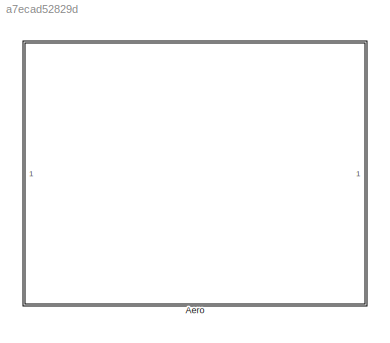
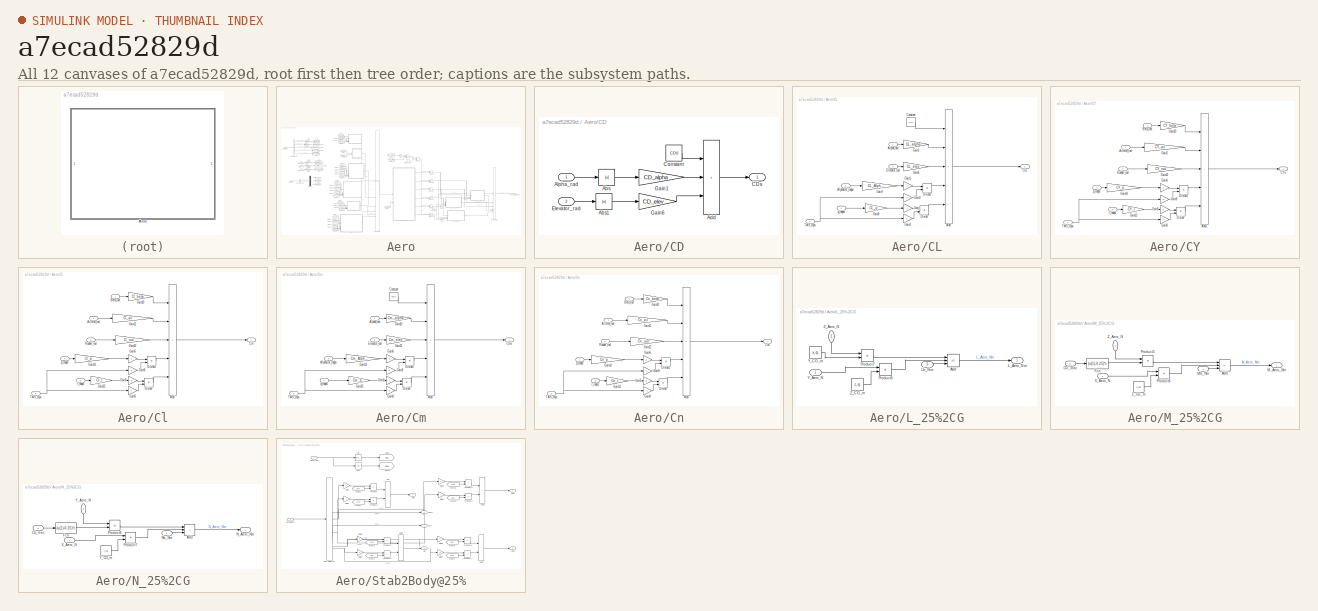
[diagram: thumbnail index - all 12 canvases of the model, root first then tree order]
MODEL slx_a7ecad52829d
KIND library
CONFIG AbsTol = auto
CONFIG EnableMultiTasking = off
CONFIG FixedStep = auto
CONFIG MaxStep = auto
CONFIG MinStep = auto
CONFIG RelTol = 1e-3
CONFIG SampleTimeConstraint = Unconstrained
CONFIG SolverName = VariableStepAuto
CONFIG StartTime = 0.0
CONFIG StopTime = 10.0
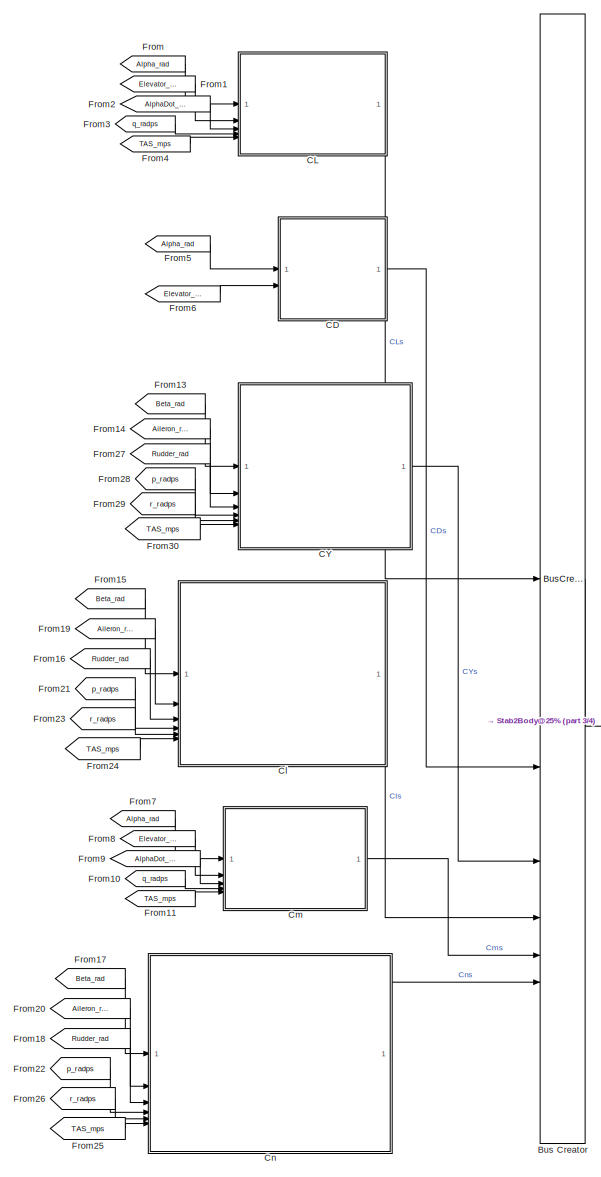
[diagram: Aero - part 1/4, left side, full height]
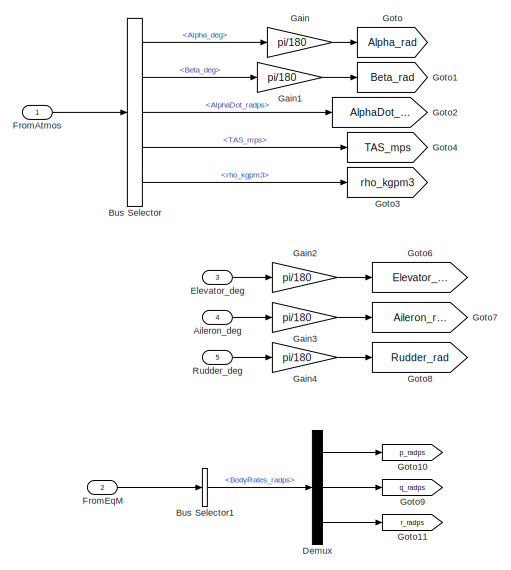
[diagram: Aero - part 2/4, top left region]
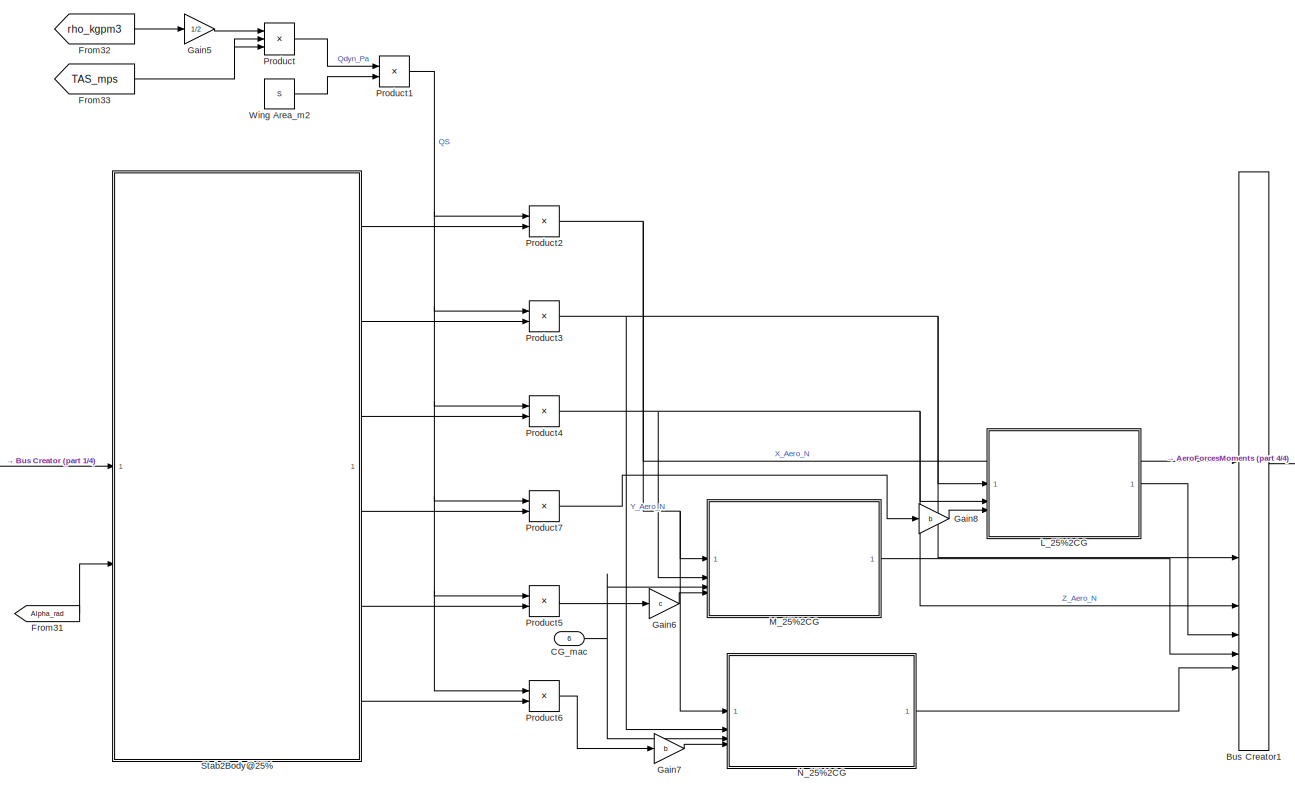
[diagram: Aero - part 3/4, central region]
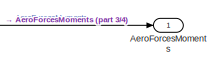
[diagram: Aero - part 4/4, middle right region]
BLOCK [SubSystem] Aero
BLOCK [Outport] Aero/AeroForcesMoments
BLOCK [Inport] Aero/Aileron_deg
  Port = 4
BLOCK [BusCreator] Aero/Bus Creator
  DisplayOption = bar
  InheritFromInputs = on
  Inputs = 6
BLOCK [BusCreator] Aero/Bus Creator1
  DisplayOption = bar
  InheritFromInputs = on
  Inputs = 6
BLOCK [BusSelector] Aero/Bus Selector
  OutputSignals = Alpha_deg,Beta_deg,AlphaDot_radps,TAS_mps,rho_kgpm3
BLOCK [BusSelector] Aero/Bus Selector1
  OutputSignals = BodyRates_radps
BLOCK [SubSystem] Aero/CD
BLOCK [Abs] Aero/CD/Abs
  SaturateOnIntegerOverflow = off
BLOCK [Abs] Aero/CD/Abs1
  SaturateOnIntegerOverflow = off
BLOCK [Sum] Aero/CD/Add
  IconShape = rectangular
  Inputs = +++
BLOCK [Inport] Aero/CD/Alpha_rad
BLOCK [Outport] Aero/CD/CDs
BLOCK [Constant] Aero/CD/Constant
  Value = CD0
BLOCK [Inport] Aero/CD/Elevator_rad
  Port = 2
BLOCK [Gain] Aero/CD/Gain1
  Gain = CD_alpha
BLOCK [Gain] Aero/CD/Gain6
  Gain = CD_elev
BLOCK [Inport] Aero/CG_mac
  Port = 6
BLOCK [SubSystem] Aero/CL
BLOCK [Sum] Aero/CL/Add
  IconShape = rectangular
  Inputs = +++++
BLOCK [Inport] Aero/CL/AlphaDot_radps
  Port = 3
BLOCK [Inport] Aero/CL/Alpha_rad
BLOCK [Outport] Aero/CL/CLs
BLOCK [Constant] Aero/CL/Constant
  Value = CL0
BLOCK [Product] Aero/CL/Divide
  Inputs = */
BLOCK [Product] Aero/CL/Divide1
  Inputs = */
BLOCK [Inport] Aero/CL/Elevator_rad
  Port = 2
BLOCK [Gain] Aero/CL/Gain
  Gain = c
BLOCK [Gain] Aero/CL/Gain1
  Gain = c
BLOCK [Gain] Aero/CL/Gain2
  Gain = 2
BLOCK [Gain] Aero/CL/Gain3
  Gain = 2
BLOCK [Gain] Aero/CL/Gain5
  Gain = CL_alpha
BLOCK [Gain] Aero/CL/Gain6
  Gain = CL_elev
BLOCK [Gain] Aero/CL/Gain7
  Gain = CL_AlphaDot
BLOCK [Gain] Aero/CL/Gain8
  Gain = CL_q
BLOCK [Inport] Aero/CL/TAS_mps
  Port = 5
BLOCK [Inport] Aero/CL/q_radps
  Port = 4
BLOCK [SubSystem] Aero/CY
BLOCK [Sum] Aero/CY/Add1
  IconShape = rectangular
  Inputs = +++++
BLOCK [Inport] Aero/CY/Aileron_rad
  Port = 2
BLOCK [Inport] Aero/CY/Beta_rad
BLOCK [Outport] Aero/CY/CYs
BLOCK [Product] Aero/CY/Divide
  Inputs = */
BLOCK [Product] Aero/CY/Divide1
  Inputs = */
BLOCK [Gain] Aero/CY/Gain10
  Gain = CY_beta
BLOCK [Gain] Aero/CY/Gain12
  Gain = CY_rud
BLOCK [Gain] Aero/CY/Gain13
  Gain = CY_r
BLOCK [Gain] Aero/CY/Gain14
  Gain = CY_p
BLOCK [Gain] Aero/CY/Gain2
  Gain = CY_ail
BLOCK [Gain] Aero/CY/Gain5
  Gain = b
BLOCK [Gain] Aero/CY/Gain6
  Gain = b
BLOCK [Gain] Aero/CY/Gain8
  Gain = 2
BLOCK [Gain] Aero/CY/Gain9
  Gain = 2
BLOCK [Inport] Aero/CY/Rudder_rad
  Port = 3
BLOCK [Inport] Aero/CY/TAS_mps
  Port = 6
BLOCK [Inport] Aero/CY/p_radps
  Port = 4
BLOCK [Inport] Aero/CY/r_radps
  Port = 5
BLOCK [SubSystem] Aero/Cl
BLOCK [Sum] Aero/Cl/Add
  IconShape = rectangular
  Inputs = +++++
BLOCK [Inport] Aero/Cl/Aileron_rad
  Port = 2
BLOCK [Inport] Aero/Cl/Beta_rad
BLOCK [Outport] Aero/Cl/Cls
BLOCK [Product] Aero/Cl/Divide
  Inputs = */
BLOCK [Product] Aero/Cl/Divide1
  Inputs = */
BLOCK [Gain] Aero/Cl/Gain10
  Gain = Cl_beta
BLOCK [Gain] Aero/Cl/Gain11
  Gain = Cl_ail
BLOCK [Gain] Aero/Cl/Gain12
  Gain = Cl_rud
BLOCK [Gain] Aero/Cl/Gain13
  Gain = Cl_r
BLOCK [Gain] Aero/Cl/Gain14
  Gain = Cl_p
BLOCK [Gain] Aero/Cl/Gain5
  Gain = b
BLOCK [Gain] Aero/Cl/Gain6
  Gain = b
BLOCK [Gain] Aero/Cl/Gain8
  Gain = 2
BLOCK [Gain] Aero/Cl/Gain9
  Gain = 2
BLOCK [Inport] Aero/Cl/Rudder_rad
  Port = 3
BLOCK [Inport] Aero/Cl/TAS_mps
  Port = 6
BLOCK [Inport] Aero/Cl/p_radps
  Port = 4
BLOCK [Inport] Aero/Cl/r_radps
  Port = 5
BLOCK [SubSystem] Aero/Cm
BLOCK [Sum] Aero/Cm/Add
  IconShape = rectangular
  Inputs = +++++
BLOCK [Inport] Aero/Cm/AlphaDot_radps
  Port = 3
BLOCK [Inport] Aero/Cm/Alpha_rad
BLOCK [Outport] Aero/Cm/Cms
BLOCK [Constant] Aero/Cm/Constant
  Value = Cm0
BLOCK [Product] Aero/Cm/Divide
  Inputs = */
BLOCK [Product] Aero/Cm/Divide1
  Inputs = */
BLOCK [Inport] Aero/Cm/Elevator_rad
  Port = 2
BLOCK [Gain] Aero/Cm/Gain10
  Gain = Cm_alpha
BLOCK [Gain] Aero/Cm/Gain11
  Gain = Cm_elev
BLOCK [Gain] Aero/Cm/Gain12
  Gain = Cm_AlphaDot
BLOCK [Gain] Aero/Cm/Gain13
  Gain = Cm_q
BLOCK [Gain] Aero/Cm/Gain5
  Gain = c
BLOCK [Gain] Aero/Cm/Gain6
  Gain = c
BLOCK [Gain] Aero/Cm/Gain8
  Gain = 2
BLOCK [Gain] Aero/Cm/Gain9
  Gain = 2
BLOCK [Inport] Aero/Cm/TAS_mps
  Port = 5
BLOCK [Inport] Aero/Cm/q_radps
  Port = 4
BLOCK [SubSystem] Aero/Cn
BLOCK [Sum] Aero/Cn/Add
  IconShape = rectangular
  Inputs = +++++
BLOCK [Inport] Aero/Cn/Aileron_rad
  Port = 2
BLOCK [Inport] Aero/Cn/Beta_rad
BLOCK [Outport] Aero/Cn/Cns
BLOCK [Product] Aero/Cn/Divide
  Inputs = */
BLOCK [Product] Aero/Cn/Divide1
  Inputs = */
BLOCK [Gain] Aero/Cn/Gain10
  Gain = Cn_beta
BLOCK [Gain] Aero/Cn/Gain11
  Gain = Cn_ail
BLOCK [Gain] Aero/Cn/Gain12
  Gain = Cn_rud
BLOCK [Gain] Aero/Cn/Gain13
  Gain = Cn_r
BLOCK [Gain] Aero/Cn/Gain14
  Gain = Cn_p
BLOCK [Gain] Aero/Cn/Gain5
  Gain = b
BLOCK [Gain] Aero/Cn/Gain6
  Gain = b
BLOCK [Gain] Aero/Cn/Gain8
  Gain = 2
BLOCK [Gain] Aero/Cn/Gain9
  Gain = 2
BLOCK [Inport] Aero/Cn/Rudder_rad
  Port = 3
BLOCK [Inport] Aero/Cn/TAS_mps
  Port = 6
BLOCK [Inport] Aero/Cn/p_radps
  Port = 4
BLOCK [Inport] Aero/Cn/r_radps
  Port = 5
BLOCK [Demux] Aero/Demux
  Outputs = 3
BLOCK [Inport] Aero/Elevator_deg
  Port = 3
BLOCK [From] Aero/From
  GotoTag = Alpha_rad
BLOCK [From] Aero/From1
  GotoTag = Elevator_rad
BLOCK [From] Aero/From10
  GotoTag = q_radps
BLOCK [From] Aero/From11
  GotoTag = TAS_mps
BLOCK [From] Aero/From13
  GotoTag = Beta_rad
BLOCK [From] Aero/From14
  GotoTag = Aileron_rad
BLOCK [From] Aero/From15
  GotoTag = Beta_rad
BLOCK [From] Aero/From16
  GotoTag = Rudder_rad
BLOCK [From] Aero/From17
  GotoTag = Beta_rad
BLOCK [From] Aero/From18
  GotoTag = Rudder_rad
BLOCK [From] Aero/From19
  GotoTag = Aileron_rad
BLOCK [From] Aero/From2
  GotoTag = AlphaDot_radps
BLOCK [From] Aero/From20
  GotoTag = Aileron_rad
BLOCK [From] Aero/From21
  GotoTag = p_radps
BLOCK [From] Aero/From22
  GotoTag = p_radps
BLOCK [From] Aero/From23
  GotoTag = r_radps
BLOCK [From] Aero/From24
  GotoTag = TAS_mps
BLOCK [From] Aero/From25
  GotoTag = TAS_mps
BLOCK [From] Aero/From26
  GotoTag = r_radps
BLOCK [From] Aero/From27
  GotoTag = Rudder_rad
BLOCK [From] Aero/From28
  GotoTag = p_radps
BLOCK [From] Aero/From29
  GotoTag = r_radps
BLOCK [From] Aero/From3
  GotoTag = q_radps
BLOCK [From] Aero/From30
  GotoTag = TAS_mps
BLOCK [From] Aero/From31
  GotoTag = Alpha_rad
BLOCK [From] Aero/From32
  GotoTag = rho_kgpm3
BLOCK [From] Aero/From33
  GotoTag = TAS_mps
BLOCK [From] Aero/From4
  GotoTag = TAS_mps
BLOCK [From] Aero/From5
  GotoTag = Alpha_rad
BLOCK [From] Aero/From6
  GotoTag = Elevator_rad
BLOCK [From] Aero/From7
  GotoTag = Alpha_rad
BLOCK [From] Aero/From8
  GotoTag = Elevator_rad
BLOCK [From] Aero/From9
  GotoTag = AlphaDot_radps
BLOCK [Inport] Aero/FromAtmos
BLOCK [Inport] Aero/FromEqM
  Port = 2
BLOCK [Gain] Aero/Gain
  Gain = pi/180
BLOCK [Gain] Aero/Gain1
  Gain = pi/180
BLOCK [Gain] Aero/Gain2
  Gain = pi/180
BLOCK [Gain] Aero/Gain3
  Gain = pi/180
BLOCK [Gain] Aero/Gain4
  Gain = pi/180
BLOCK [Gain] Aero/Gain5
  Gain = 1/2
BLOCK [Gain] Aero/Gain6
  Gain = c
BLOCK [Gain] Aero/Gain7
  Gain = b
BLOCK [Gain] Aero/Gain8
  Gain = b
BLOCK [Goto] Aero/Goto
  GotoTag = Alpha_rad
BLOCK [Goto] Aero/Goto1
  GotoTag = Beta_rad
BLOCK [Goto] Aero/Goto10
  GotoTag = p_radps
BLOCK [Goto] Aero/Goto11
  GotoTag = r_radps
BLOCK [Goto] Aero/Goto2
  GotoTag = AlphaDot_radps
BLOCK [Goto] Aero/Goto3
  GotoTag = rho_kgpm3
BLOCK [Goto] Aero/Goto4
  GotoTag = TAS_mps
BLOCK [Goto] Aero/Goto6
  GotoTag = Elevator_rad
BLOCK [Goto] Aero/Goto7
  GotoTag = Aileron_rad
BLOCK [Goto] Aero/Goto8
  GotoTag = Rudder_rad
BLOCK [Goto] Aero/Goto9
  GotoTag = q_radps
BLOCK [SubSystem] Aero/L_25%2CG
BLOCK [Sum] Aero/L_25%2CG/Add
  IconShape = rectangular
  Inputs = --+
BLOCK [Outport] Aero/L_25%2CG/L_Aero_Nm
BLOCK [Inport] Aero/L_25%2CG/Lb_Nm
  Port = 3
BLOCK [Product] Aero/L_25%2CG/Product7
BLOCK [Product] Aero/L_25%2CG/Product8
BLOCK [Inport] Aero/L_25%2CG/Y_Aero_N
BLOCK [Constant] Aero/L_25%2CG/Y_CG_m
  Value = y_cg
BLOCK [Inport] Aero/L_25%2CG/Z_Aero_N
  NameLocation = left
  Port = 2
BLOCK [Constant] Aero/L_25%2CG/Z_CG_m
  Value = z_cg
BLOCK [SubSystem] Aero/M_25%2CG
BLOCK [Sum] Aero/M_25%2CG/Add
  IconShape = rectangular
  Inputs = -++
BLOCK [Inport] Aero/M_25%2CG/CG_mac
  Port = 3
BLOCK [Fcn] Aero/M_25%2CG/Fcn
  Expr = (u(1)-0.25)*c
BLOCK [Outport] Aero/M_25%2CG/M_Aero_Nm
BLOCK [Inport] Aero/M_25%2CG/Mb_Nm
  Port = 4
BLOCK [Product] Aero/M_25%2CG/Product5
BLOCK [Product] Aero/M_25%2CG/Product6
BLOCK [Inport] Aero/M_25%2CG/X_Aero_N
BLOCK [Inport] Aero/M_25%2CG/Z_Aero_N
  NameLocation = left
  Port = 2
BLOCK [Constant] Aero/M_25%2CG/Z_CG_m
  Value = z_cg
BLOCK [SubSystem] Aero/N_25%2CG
BLOCK [Sum] Aero/N_25%2CG/Add
  IconShape = rectangular
  Inputs = +++
BLOCK [Inport] Aero/N_25%2CG/CG_mac
  Port = 3
BLOCK [Fcn] Aero/N_25%2CG/Fcn
  Expr = (u(1)-0.25)*c
BLOCK [Outport] Aero/N_25%2CG/N_Aero_Nm
BLOCK [Inport] Aero/N_25%2CG/Nb_Nm
  Port = 4
BLOCK [Product] Aero/N_25%2CG/Product6
BLOCK [Product] Aero/N_25%2CG/Product7
BLOCK [Inport] Aero/N_25%2CG/X_Aero_N
BLOCK [Inport] Aero/N_25%2CG/Y_Aero_N
  NameLocation = left
  Port = 2
BLOCK [Constant] Aero/N_25%2CG/Y_CG_m
  Value = y_cg
BLOCK [Product] Aero/Product
  Inputs = 3
BLOCK [Product] Aero/Product1
BLOCK [Product] Aero/Product2
BLOCK [Product] Aero/Product3
BLOCK [Product] Aero/Product4
BLOCK [Product] Aero/Product5
BLOCK [Product] Aero/Product6
BLOCK [Product] Aero/Product7
BLOCK [Inport] Aero/Rudder_deg
  Port = 5
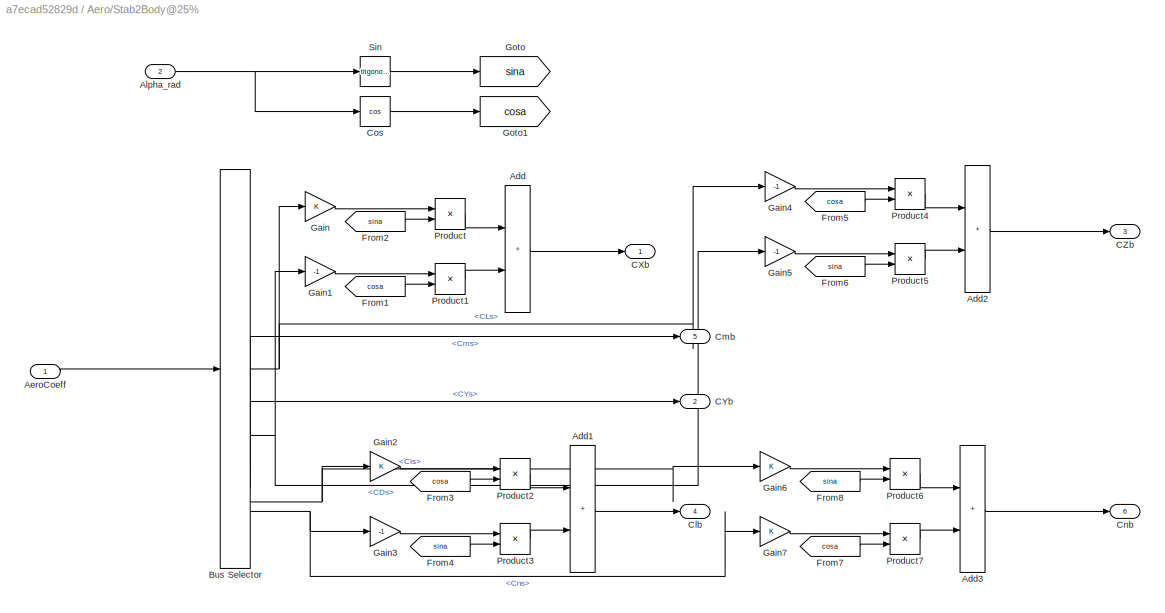
BLOCK [SubSystem] Aero/Stab2Body@25%
BLOCK [Sum] Aero/Stab2Body@25%/Add
  IconShape = rectangular
BLOCK [Sum] Aero/Stab2Body@25%/Add1
  IconShape = rectangular
BLOCK [Sum] Aero/Stab2Body@25%/Add2
  IconShape = rectangular
BLOCK [Sum] Aero/Stab2Body@25%/Add3
  IconShape = rectangular
BLOCK [Inport] Aero/Stab2Body@25%/AeroCoeff
BLOCK [Inport] Aero/Stab2Body@25%/Alpha_rad
  Port = 2
BLOCK [BusSelector] Aero/Stab2Body@25%/Bus Selector
  OutputSignals = CLs,CDs,Cms,CYs,Cls,Cns
BLOCK [Outport] Aero/Stab2Body@25%/CXb
BLOCK [Outport] Aero/Stab2Body@25%/CYb
  Port = 2
BLOCK [Outport] Aero/Stab2Body@25%/CZb
  Port = 3
BLOCK [Outport] Aero/Stab2Body@25%/Clb
  Port = 4
BLOCK [Outport] Aero/Stab2Body@25%/Cmb
  Port = 5
BLOCK [Outport] Aero/Stab2Body@25%/Cnb
  Port = 6
BLOCK [Trigonometry] Aero/Stab2Body@25%/Cos
  Operator = cos
BLOCK [From] Aero/Stab2Body@25%/From1
  GotoTag = cosa
BLOCK [From] Aero/Stab2Body@25%/From2
  GotoTag = sina
BLOCK [From] Aero/Stab2Body@25%/From3
  GotoTag = cosa
BLOCK [From] Aero/Stab2Body@25%/From4
  GotoTag = sina
BLOCK [From] Aero/Stab2Body@25%/From5
  GotoTag = cosa
BLOCK [From] Aero/Stab2Body@25%/From6
  GotoTag = sina
BLOCK [From] Aero/Stab2Body@25%/From7
  GotoTag = cosa
BLOCK [From] Aero/Stab2Body@25%/From8
  GotoTag = sina
BLOCK [Gain] Aero/Stab2Body@25%/Gain
BLOCK [Gain] Aero/Stab2Body@25%/Gain1
  Gain = -1
BLOCK [Gain] Aero/Stab2Body@25%/Gain2
BLOCK [Gain] Aero/Stab2Body@25%/Gain3
  Gain = -1
BLOCK [Gain] Aero/Stab2Body@25%/Gain4
  Gain = -1
BLOCK [Gain] Aero/Stab2Body@25%/Gain5
  Gain = -1
BLOCK [Gain] Aero/Stab2Body@25%/Gain6
BLOCK [Gain] Aero/Stab2Body@25%/Gain7
BLOCK [Goto] Aero/Stab2Body@25%/Goto
  GotoTag = sina
BLOCK [Goto] Aero/Stab2Body@25%/Goto1
  GotoTag = cosa
BLOCK [Product] Aero/Stab2Body@25%/Product
BLOCK [Product] Aero/Stab2Body@25%/Product1
BLOCK [Product] Aero/Stab2Body@25%/Product2
BLOCK [Product] Aero/Stab2Body@25%/Product3
BLOCK [Product] Aero/Stab2Body@25%/Product4
BLOCK [Product] Aero/Stab2Body@25%/Product5
BLOCK [Product] Aero/Stab2Body@25%/Product6
BLOCK [Product] Aero/Stab2Body@25%/Product7
BLOCK [Trigonometry] Aero/Stab2Body@25%/Sin
BLOCK [Constant] Aero/Wing Area_m2
  Value = S
LINE Aero/Aileron_deg:1 -> Aero/Gain3:1
LINE Aero/Bus Creator1:1 -> Aero/AeroForcesMoments:1
LINE Aero/Bus Creator:1 -> Aero/Stab2Body@25%:1
LINE Aero/Bus Selector1:1 -> Aero/Demux:1
LINE Aero/Bus Selector:1 -> Aero/Gain:1
LINE Aero/Bus Selector:2 -> Aero/Gain1:1
LINE Aero/Bus Selector:3 -> Aero/Goto2:1
LINE Aero/Bus Selector:4 -> Aero/Goto4:1
LINE Aero/Bus Selector:5 -> Aero/Goto3:1
LINE Aero/CD/Abs1:1 -> Aero/CD/Gain6:1
LINE Aero/CD/Abs:1 -> Aero/CD/Gain1:1
LINE Aero/CD/Add:1 -> Aero/CD/CDs:1
LINE Aero/CD/Alpha_rad:1 -> Aero/CD/Abs:1
LINE Aero/CD/Constant:1 -> Aero/CD/Add:1
LINE Aero/CD/Elevator_rad:1 -> Aero/CD/Abs1:1
LINE Aero/CD/Gain1:1 -> Aero/CD/Add:2
LINE Aero/CD/Gain6:1 -> Aero/CD/Add:3
LINE Aero/CD:1 -> Aero/Bus Creator:2
NET Aero/CG_mac:1 -> Aero/M_25%2CG:3, Aero/N_25%2CG:3
LINE Aero/CL/Add:1 -> Aero/CL/CLs:1
LINE Aero/CL/AlphaDot_radps:1 -> Aero/CL/Gain7:1
LINE Aero/CL/Alpha_rad:1 -> Aero/CL/Gain5:1
LINE Aero/CL/Constant:1 -> Aero/CL/Add:1
LINE Aero/CL/Divide1:1 -> Aero/CL/Add:4
LINE Aero/CL/Divide:1 -> Aero/CL/Add:5
LINE Aero/CL/Elevator_rad:1 -> Aero/CL/Gain6:1
LINE Aero/CL/Gain1:1 -> Aero/CL/Divide1:1
LINE Aero/CL/Gain2:1 -> Aero/CL/Divide:2
LINE Aero/CL/Gain3:1 -> Aero/CL/Divide1:2
LINE Aero/CL/Gain5:1 -> Aero/CL/Add:2
LINE Aero/CL/Gain6:1 -> Aero/CL/Add:3
LINE Aero/CL/Gain7:1 -> Aero/CL/Gain1:1
LINE Aero/CL/Gain8:1 -> Aero/CL/Gain:1
LINE Aero/CL/Gain:1 -> Aero/CL/Divide:1
NET Aero/CL/TAS_mps:1 -> Aero/CL/Gain2:1, Aero/CL/Gain3:1
LINE Aero/CL/q_radps:1 -> Aero/CL/Gain8:1
LINE Aero/CL:1 -> Aero/Bus Creator:1
LINE Aero/CY/Add1:1 -> Aero/CY/CYs:1
LINE Aero/CY/Aileron_rad:1 -> Aero/CY/Gain2:1
LINE Aero/CY/Beta_rad:1 -> Aero/CY/Gain10:1
LINE Aero/CY/Divide1:1 -> Aero/CY/Add1:4
LINE Aero/CY/Divide:1 -> Aero/CY/Add1:5
LINE Aero/CY/Gain10:1 -> Aero/CY/Add1:1
LINE Aero/CY/Gain12:1 -> Aero/CY/Add1:3
LINE Aero/CY/Gain13:1 -> Aero/CY/Gain5:1
LINE Aero/CY/Gain14:1 -> Aero/CY/Gain6:1
LINE Aero/CY/Gain2:1 -> Aero/CY/Add1:2
LINE Aero/CY/Gain5:1 -> Aero/CY/Divide:1
LINE Aero/CY/Gain6:1 -> Aero/CY/Divide1:1
LINE Aero/CY/Gain8:1 -> Aero/CY/Divide:2
LINE Aero/CY/Gain9:1 -> Aero/CY/Divide1:2
LINE Aero/CY/Rudder_rad:1 -> Aero/CY/Gain12:1
NET Aero/CY/TAS_mps:1 -> Aero/CY/Gain8:1, Aero/CY/Gain9:1
LINE Aero/CY/p_radps:1 -> Aero/CY/Gain14:1
LINE Aero/CY/r_radps:1 -> Aero/CY/Gain13:1
LINE Aero/CY:1 -> Aero/Bus Creator:3
LINE Aero/Cl/Add:1 -> Aero/Cl/Cls:1
LINE Aero/Cl/Aileron_rad:1 -> Aero/Cl/Gain11:1
LINE Aero/Cl/Beta_rad:1 -> Aero/Cl/Gain10:1
LINE Aero/Cl/Divide1:1 -> Aero/Cl/Add:4
LINE Aero/Cl/Divide:1 -> Aero/Cl/Add:5
LINE Aero/Cl/Gain10:1 -> Aero/Cl/Add:1
LINE Aero/Cl/Gain11:1 -> Aero/Cl/Add:2
LINE Aero/Cl/Gain12:1 -> Aero/Cl/Add:3
LINE Aero/Cl/Gain13:1 -> Aero/Cl/Gain5:1
LINE Aero/Cl/Gain14:1 -> Aero/Cl/Gain6:1
LINE Aero/Cl/Gain5:1 -> Aero/Cl/Divide:1
LINE Aero/Cl/Gain6:1 -> Aero/Cl/Divide1:1
LINE Aero/Cl/Gain8:1 -> Aero/Cl/Divide:2
LINE Aero/Cl/Gain9:1 -> Aero/Cl/Divide1:2
LINE Aero/Cl/Rudder_rad:1 -> Aero/Cl/Gain12:1
NET Aero/Cl/TAS_mps:1 -> Aero/Cl/Gain8:1, Aero/Cl/Gain9:1
LINE Aero/Cl/p_radps:1 -> Aero/Cl/Gain14:1
LINE Aero/Cl/r_radps:1 -> Aero/Cl/Gain13:1
LINE Aero/Cl:1 -> Aero/Bus Creator:4
LINE Aero/Cm/Add:1 -> Aero/Cm/Cms:1
LINE Aero/Cm/AlphaDot_radps:1 -> Aero/Cm/Gain12:1
LINE Aero/Cm/Alpha_rad:1 -> Aero/Cm/Gain10:1
LINE Aero/Cm/Constant:1 -> Aero/Cm/Add:1
LINE Aero/Cm/Divide1:1 -> Aero/Cm/Add:4
LINE Aero/Cm/Divide:1 -> Aero/Cm/Add:5
LINE Aero/Cm/Elevator_rad:1 -> Aero/Cm/Gain11:1
LINE Aero/Cm/Gain10:1 -> Aero/Cm/Add:2
LINE Aero/Cm/Gain11:1 -> Aero/Cm/Add:3
LINE Aero/Cm/Gain12:1 -> Aero/Cm/Gain6:1
LINE Aero/Cm/Gain13:1 -> Aero/Cm/Gain5:1
LINE Aero/Cm/Gain5:1 -> Aero/Cm/Divide:1
LINE Aero/Cm/Gain6:1 -> Aero/Cm/Divide1:1
LINE Aero/Cm/Gain8:1 -> Aero/Cm/Divide:2
LINE Aero/Cm/Gain9:1 -> Aero/Cm/Divide1:2
NET Aero/Cm/TAS_mps:1 -> Aero/Cm/Gain8:1, Aero/Cm/Gain9:1
LINE Aero/Cm/q_radps:1 -> Aero/Cm/Gain13:1
LINE Aero/Cm:1 -> Aero/Bus Creator:5
LINE Aero/Cn/Add:1 -> Aero/Cn/Cns:1
LINE Aero/Cn/Aileron_rad:1 -> Aero/Cn/Gain11:1
LINE Aero/Cn/Beta_rad:1 -> Aero/Cn/Gain10:1
LINE Aero/Cn/Divide1:1 -> Aero/Cn/Add:4
LINE Aero/Cn/Divide:1 -> Aero/Cn/Add:5
LINE Aero/Cn/Gain10:1 -> Aero/Cn/Add:1
LINE Aero/Cn/Gain11:1 -> Aero/Cn/Add:2
LINE Aero/Cn/Gain12:1 -> Aero/Cn/Add:3
LINE Aero/Cn/Gain13:1 -> Aero/Cn/Gain5:1
LINE Aero/Cn/Gain14:1 -> Aero/Cn/Gain6:1
LINE Aero/Cn/Gain5:1 -> Aero/Cn/Divide:1
LINE Aero/Cn/Gain6:1 -> Aero/Cn/Divide1:1
LINE Aero/Cn/Gain8:1 -> Aero/Cn/Divide:2
LINE Aero/Cn/Gain9:1 -> Aero/Cn/Divide1:2
LINE Aero/Cn/Rudder_rad:1 -> Aero/Cn/Gain12:1
NET Aero/Cn/TAS_mps:1 -> Aero/Cn/Gain8:1, Aero/Cn/Gain9:1
LINE Aero/Cn/p_radps:1 -> Aero/Cn/Gain14:1
LINE Aero/Cn/r_radps:1 -> Aero/Cn/Gain13:1
LINE Aero/Cn:1 -> Aero/Bus Creator:6
LINE Aero/Demux:1 -> Aero/Goto10:1
LINE Aero/Demux:2 -> Aero/Goto9:1
LINE Aero/Demux:3 -> Aero/Goto11:1
LINE Aero/Elevator_deg:1 -> Aero/Gain2:1
LINE Aero/From10:1 -> Aero/Cm:4
LINE Aero/From11:1 -> Aero/Cm:5
LINE Aero/From13:1 -> Aero/CY:1
LINE Aero/From14:1 -> Aero/CY:2
LINE Aero/From15:1 -> Aero/Cl:1
LINE Aero/From16:1 -> Aero/Cl:3
LINE Aero/From17:1 -> Aero/Cn:1
LINE Aero/From18:1 -> Aero/Cn:3
LINE Aero/From19:1 -> Aero/Cl:2
LINE Aero/From1:1 -> Aero/CL:2
LINE Aero/From20:1 -> Aero/Cn:2
LINE Aero/From21:1 -> Aero/Cl:4
LINE Aero/From22:1 -> Aero/Cn:4
LINE Aero/From23:1 -> Aero/Cl:5
LINE Aero/From24:1 -> Aero/Cl:6
LINE Aero/From25:1 -> Aero/Cn:6
LINE Aero/From26:1 -> Aero/Cn:5
LINE Aero/From27:1 -> Aero/CY:3
LINE Aero/From28:1 -> Aero/CY:4
LINE Aero/From29:1 -> Aero/CY:5
LINE Aero/From2:1 -> Aero/CL:3
LINE Aero/From30:1 -> Aero/CY:6
LINE Aero/From31:1 -> Aero/Stab2Body@25%:2
LINE Aero/From32:1 -> Aero/Gain5:1
NET Aero/From33:1 -> Aero/Product:2, Aero/Product:3
LINE Aero/From3:1 -> Aero/CL:4
LINE Aero/From4:1 -> Aero/CL:5
LINE Aero/From5:1 -> Aero/CD:1
LINE Aero/From6:1 -> Aero/CD:2
LINE Aero/From7:1 -> Aero/Cm:1
LINE Aero/From8:1 -> Aero/Cm:2
LINE Aero/From9:1 -> Aero/Cm:3
LINE Aero/From:1 -> Aero/CL:1
LINE Aero/FromAtmos:1 -> Aero/Bus Selector:1
LINE Aero/FromEqM:1 -> Aero/Bus Selector1:1
LINE Aero/Gain1:1 -> Aero/Goto1:1
LINE Aero/Gain2:1 -> Aero/Goto6:1
LINE Aero/Gain3:1 -> Aero/Goto7:1
LINE Aero/Gain4:1 -> Aero/Goto8:1
LINE Aero/Gain5:1 -> Aero/Product:1
LINE Aero/Gain6:1 -> Aero/M_25%2CG:4
LINE Aero/Gain7:1 -> Aero/N_25%2CG:4
LINE Aero/Gain8:1 -> Aero/L_25%2CG:3
LINE Aero/Gain:1 -> Aero/Goto:1
LINE Aero/L_25%2CG/Add:1 -> Aero/L_25%2CG/L_Aero_Nm:1
LINE Aero/L_25%2CG/Lb_Nm:1 -> Aero/L_25%2CG/Add:3
LINE Aero/L_25%2CG/Product7:1 -> Aero/L_25%2CG/Add:1
LINE Aero/L_25%2CG/Product8:1 -> Aero/L_25%2CG/Add:2
LINE Aero/L_25%2CG/Y_Aero_N:1 -> Aero/L_25%2CG/Product8:1
LINE Aero/L_25%2CG/Y_CG_m:1 -> Aero/L_25%2CG/Product7:2
LINE Aero/L_25%2CG/Z_Aero_N:1 -> Aero/L_25%2CG/Product7:1
LINE Aero/L_25%2CG/Z_CG_m:1 -> Aero/L_25%2CG/Product8:2
LINE Aero/L_25%2CG:1 -> Aero/Bus Creator1:4
LINE Aero/M_25%2CG/Add:1 -> Aero/M_25%2CG/M_Aero_Nm:1
LINE Aero/M_25%2CG/CG_mac:1 -> Aero/M_25%2CG/Fcn:1
LINE Aero/M_25%2CG/Fcn:1 -> Aero/M_25%2CG/Product5:2
LINE Aero/M_25%2CG/Mb_Nm:1 -> Aero/M_25%2CG/Add:3
LINE Aero/M_25%2CG/Product5:1 -> Aero/M_25%2CG/Add:1
LINE Aero/M_25%2CG/Product6:1 -> Aero/M_25%2CG/Add:2
LINE Aero/M_25%2CG/X_Aero_N:1 -> Aero/M_25%2CG/Product6:1
LINE Aero/M_25%2CG/Z_Aero_N:1 -> Aero/M_25%2CG/Product5:1
LINE Aero/M_25%2CG/Z_CG_m:1 -> Aero/M_25%2CG/Product6:2
LINE Aero/M_25%2CG:1 -> Aero/Bus Creator1:5
LINE Aero/N_25%2CG/Add:1 -> Aero/N_25%2CG/N_Aero_Nm:1
LINE Aero/N_25%2CG/CG_mac:1 -> Aero/N_25%2CG/Fcn:1
LINE Aero/N_25%2CG/Fcn:1 -> Aero/N_25%2CG/Product6:2
LINE Aero/N_25%2CG/Nb_Nm:1 -> Aero/N_25%2CG/Add:3
LINE Aero/N_25%2CG/Product6:1 -> Aero/N_25%2CG/Add:1
LINE Aero/N_25%2CG/Product7:1 -> Aero/N_25%2CG/Add:2
LINE Aero/N_25%2CG/X_Aero_N:1 -> Aero/N_25%2CG/Product7:1
LINE Aero/N_25%2CG/Y_Aero_N:1 -> Aero/N_25%2CG/Product6:1
LINE Aero/N_25%2CG/Y_CG_m:1 -> Aero/N_25%2CG/Product7:2
LINE Aero/N_25%2CG:1 -> Aero/Bus Creator1:6
NET Aero/Product1:1 -> Aero/Product2:1, Aero/Product3:1, Aero/Product4:1, Aero/Product5:1, Aero/Product6:1, Aero/Product7:1
NET Aero/Product2:1 -> Aero/Bus Creator1:1, Aero/M_25%2CG:1, Aero/N_25%2CG:1
NET Aero/Product3:1 -> Aero/Bus Creator1:2, Aero/L_25%2CG:1, Aero/N_25%2CG:2
NET Aero/Product4:1 -> Aero/Bus Creator1:3, Aero/L_25%2CG:2, Aero/M_25%2CG:2
LINE Aero/Product5:1 -> Aero/Gain6:1
LINE Aero/Product6:1 -> Aero/Gain7:1
LINE Aero/Product7:1 -> Aero/Gain8:1
LINE Aero/Product:1 -> Aero/Product1:1
LINE Aero/Rudder_deg:1 -> Aero/Gain4:1
LINE Aero/Stab2Body@25%/Add1:1 -> Aero/Stab2Body@25%/Clb:1
LINE Aero/Stab2Body@25%/Add2:1 -> Aero/Stab2Body@25%/CZb:1
LINE Aero/Stab2Body@25%/Add3:1 -> Aero/Stab2Body@25%/Cnb:1
LINE Aero/Stab2Body@25%/Add:1 -> Aero/Stab2Body@25%/CXb:1
LINE Aero/Stab2Body@25%/AeroCoeff:1 -> Aero/Stab2Body@25%/Bus Selector:1
NET Aero/Stab2Body@25%/Alpha_rad:1 -> Aero/Stab2Body@25%/Cos:1, Aero/Stab2Body@25%/Sin:1
NET Aero/Stab2Body@25%/Bus Selector:1 -> Aero/Stab2Body@25%/Gain4:1, Aero/Stab2Body@25%/Gain:1
NET Aero/Stab2Body@25%/Bus Selector:2 -> Aero/Stab2Body@25%/Gain1:1, Aero/Stab2Body@25%/Gain5:1
LINE Aero/Stab2Body@25%/Bus Selector:3 -> Aero/Stab2Body@25%/Cmb:1
LINE Aero/Stab2Body@25%/Bus Selector:4 -> Aero/Stab2Body@25%/CYb:1
NET Aero/Stab2Body@25%/Bus Selector:5 -> Aero/Stab2Body@25%/Gain2:1, Aero/Stab2Body@25%/Gain6:1
NET Aero/Stab2Body@25%/Bus Selector:6 -> Aero/Stab2Body@25%/Gain3:1, Aero/Stab2Body@25%/Gain7:1
LINE Aero/Stab2Body@25%/Cos:1 -> Aero/Stab2Body@25%/Goto1:1
LINE Aero/Stab2Body@25%/From1:1 -> Aero/Stab2Body@25%/Product1:2
LINE Aero/Stab2Body@25%/From2:1 -> Aero/Stab2Body@25%/Product:2
LINE Aero/Stab2Body@25%/From3:1 -> Aero/Stab2Body@25%/Product2:2
LINE Aero/Stab2Body@25%/From4:1 -> Aero/Stab2Body@25%/Product3:2
LINE Aero/Stab2Body@25%/From5:1 -> Aero/Stab2Body@25%/Product4:2
LINE Aero/Stab2Body@25%/From6:1 -> Aero/Stab2Body@25%/Product5:2
LINE Aero/Stab2Body@25%/From7:1 -> Aero/Stab2Body@25%/Product7:2
LINE Aero/Stab2Body@25%/From8:1 -> Aero/Stab2Body@25%/Product6:2
LINE Aero/Stab2Body@25%/Gain1:1 -> Aero/Stab2Body@25%/Product1:1
LINE Aero/Stab2Body@25%/Gain2:1 -> Aero/Stab2Body@25%/Product2:1
LINE Aero/Stab2Body@25%/Gain3:1 -> Aero/Stab2Body@25%/Product3:1
LINE Aero/Stab2Body@25%/Gain4:1 -> Aero/Stab2Body@25%/Product4:1
LINE Aero/Stab2Body@25%/Gain5:1 -> Aero/Stab2Body@25%/Product5:1
LINE Aero/Stab2Body@25%/Gain6:1 -> Aero/Stab2Body@25%/Product6:1
LINE Aero/Stab2Body@25%/Gain7:1 -> Aero/Stab2Body@25%/Product7:1
LINE Aero/Stab2Body@25%/Gain:1 -> Aero/Stab2Body@25%/Product:1
LINE Aero/Stab2Body@25%/Product1:1 -> Aero/Stab2Body@25%/Add:2
LINE Aero/Stab2Body@25%/Product2:1 -> Aero/Stab2Body@25%/Add1:1
LINE Aero/Stab2Body@25%/Product3:1 -> Aero/Stab2Body@25%/Add1:2
LINE Aero/Stab2Body@25%/Product4:1 -> Aero/Stab2Body@25%/Add2:1
LINE Aero/Stab2Body@25%/Product5:1 -> Aero/Stab2Body@25%/Add2:2
LINE Aero/Stab2Body@25%/Product6:1 -> Aero/Stab2Body@25%/Add3:1
LINE Aero/Stab2Body@25%/Product7:1 -> Aero/Stab2Body@25%/Add3:2
LINE Aero/Stab2Body@25%/Product:1 -> Aero/Stab2Body@25%/Add:1
LINE Aero/Stab2Body@25%/Sin:1 -> Aero/Stab2Body@25%/Goto:1
LINE Aero/Stab2Body@25%:1 -> Aero/Product2:2
LINE Aero/Stab2Body@25%:2 -> Aero/Product3:2
LINE Aero/Stab2Body@25%:3 -> Aero/Product4:2
LINE Aero/Stab2Body@25%:4 -> Aero/Product7:2
LINE Aero/Stab2Body@25%:5 -> Aero/Product5:2
LINE Aero/Stab2Body@25%:6 -> Aero/Product6:2
LINE Aero/Wing Area_m2:1 -> Aero/Product1:2
note: NET lines group one-source signal fan-out (src -> all destinations, sorted); 1:1 wires keep LINE
